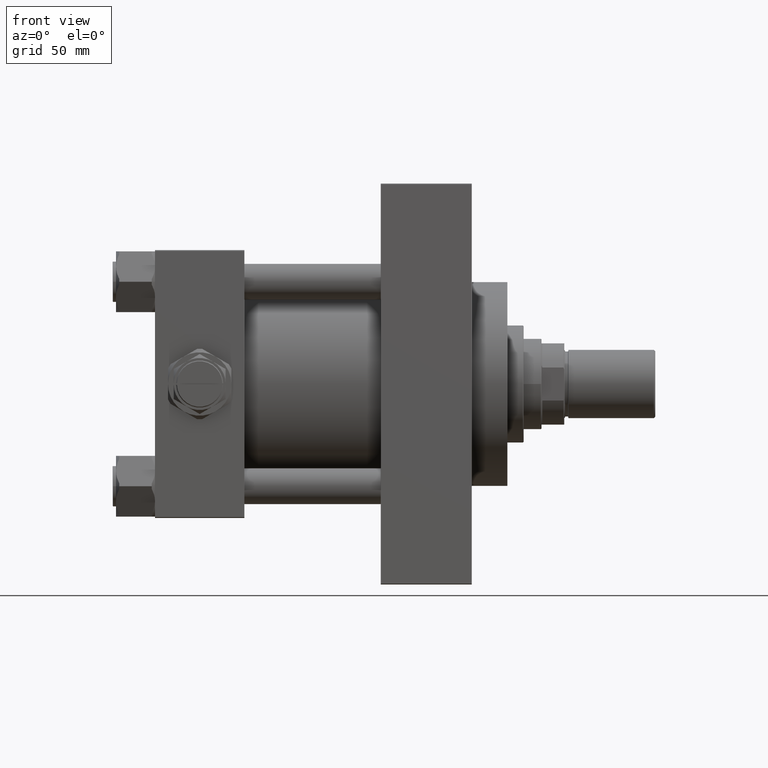
[diagram: clean part render]
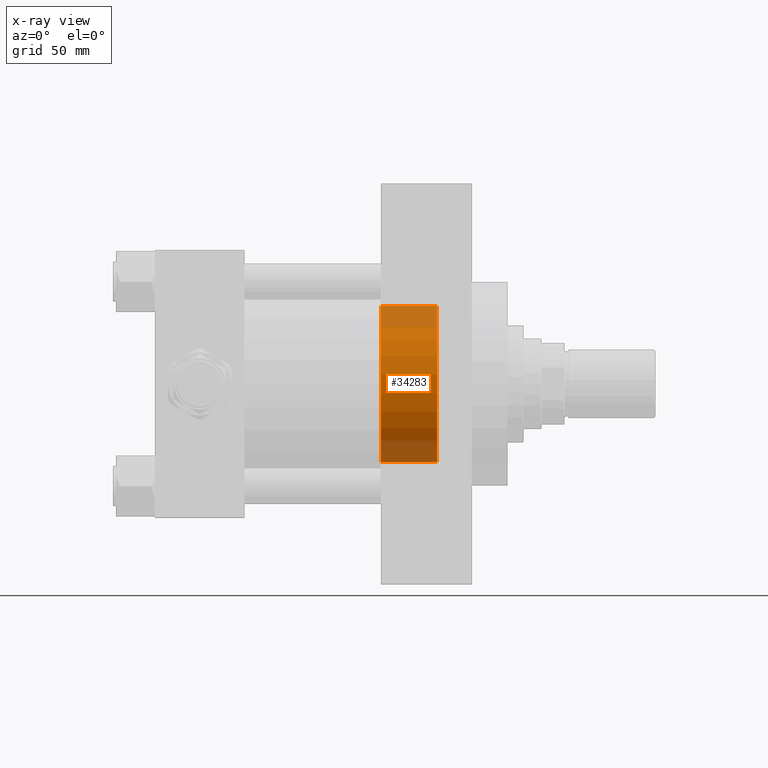
[diagram: x-ray — body ghosted, one internal face saturated and labeled with its STEP entity id]
A machine part, front view, then the same camera in x-ray: the body is ghosted and one INTERNAL B-rep face — a face not visible from any outside direction — is saturated and labeled: STEP entity #34283.
In plain terms, the highlighted cylindrical surface (partial cylindrical patch) has radius 48 mm, axis along (1, 0, 0).
Its self-contained STEP definition (entity closure, byte-faithful):
#1907 = CARTESIAN_POINT ( 'NONE',  ( 173.7400000000000091, 0.000000000000000000, -48.00000000000000711 ) ) ;
#3902 = VERTEX_POINT ( 'NONE', #34654 ) ;
#4047 = CYLINDRICAL_SURFACE ( 'NONE', #9229, 48.00000000000000711 ) ;
#5677 = AXIS2_PLACEMENT_3D ( 'NONE', #14170, #41190, #29826 ) ;
#5986 = LINE ( 'NONE', #36769, #16412 ) ;
#9229 = AXIS2_PLACEMENT_3D ( 'NONE', #19200, #26519, #22990 ) ;
#11109 = FACE_OUTER_BOUND ( 'NONE', #45816, .T. ) ;
#13203 = EDGE_CURVE ( 'NONE', #39400, #25276, #48420, .T. ) ;
#14068 = ORIENTED_EDGE ( 'NONE', *, *, #23487, .F. ) ;
#14170 = CARTESIAN_POINT ( 'NONE',  ( 173.7400000000000091, 0.000000000000000000, 0.000000000000000000 ) ) ;
#15037 = CIRCLE ( 'NONE', #38424, 48.00000000000000711 ) ;
#15856 = ORIENTED_EDGE ( 'NONE', *, *, #13203, .T. ) ;
#16074 = DIRECTION ( 'NONE',  ( -1.000000000000000000, 0.000000000000000000, -0.000000000000000000 ) ) ;
#16412 = VECTOR ( 'NONE', #39826, 1000.000000000000000 ) ;
#17287 = CARTESIAN_POINT ( 'NONE',  ( 173.7400000000000091, 5.878304635907296578E-15, 48.00000000000000711 ) ) ;
#19200 = CARTESIAN_POINT ( 'NONE',  ( -80.76450198781715528, 0.000000000000000000, 0.000000000000000000 ) ) ;
#19621 = CARTESIAN_POINT ( 'NONE',  ( 139.0000000000000000, 0.000000000000000000, 0.000000000000000000 ) ) ;
#22990 = DIRECTION ( 'NONE',  ( 0.000000000000000000, 0.000000000000000000, -1.000000000000000000 ) ) ;
#23142 = ORIENTED_EDGE ( 'NONE', *, *, #42742, .T. ) ;
#23487 = EDGE_CURVE ( 'NONE', #45126, #25276, #5986, .T. ) ;
#25276 = VERTEX_POINT ( 'NONE', #1907 ) ;
#25342 = VECTOR ( 'NONE', #35616, 1000.000000000000000 ) ;
#25620 = EDGE_CURVE ( 'NONE', #3902, #39400, #31359, .T. ) ;
#26519 = DIRECTION ( 'NONE',  ( 1.000000000000000000, -0.000000000000000000, -0.000000000000000000 ) ) ;
#29826 = DIRECTION ( 'NONE',  ( 0.000000000000000000, 0.000000000000000000, -1.000000000000000000 ) ) ;
#31359 = LINE ( 'NONE', #47243, #25342 ) ;
#31477 = DIRECTION ( 'NONE',  ( 0.000000000000000000, 0.000000000000000000, 1.000000000000000000 ) ) ;
#34283 = ADVANCED_FACE ( 'NONE', ( #11109 ), #4047, .F. ) ;
#34654 = CARTESIAN_POINT ( 'NONE',  ( 139.0000000000000000, 5.878304635907296578E-15, 48.00000000000000711 ) ) ;
#35616 = DIRECTION ( 'NONE',  ( 1.000000000000000000, -0.000000000000000000, -0.000000000000000000 ) ) ;
#36769 = CARTESIAN_POINT ( 'NONE',  ( -80.76450198781715528, 0.000000000000000000, -48.00000000000000711 ) ) ;
#38424 = AXIS2_PLACEMENT_3D ( 'NONE', #19621, #16074, #31477 ) ;
#39400 = VERTEX_POINT ( 'NONE', #17287 ) ;
#39826 = DIRECTION ( 'NONE',  ( 1.000000000000000000, -0.000000000000000000, -0.000000000000000000 ) ) ;
#41190 = DIRECTION ( 'NONE',  ( 1.000000000000000000, 0.000000000000000000, 0.000000000000000000 ) ) ;
#42742 = EDGE_CURVE ( 'NONE', #45126, #3902, #15037, .T. ) ;
#45126 = VERTEX_POINT ( 'NONE', #46601 ) ;
#45816 = EDGE_LOOP ( 'NONE', ( #23142, #46680, #15856, #14068 ) ) ;
#46601 = CARTESIAN_POINT ( 'NONE',  ( 139.0000000000000000, 0.000000000000000000, -48.00000000000000711 ) ) ;
#46680 = ORIENTED_EDGE ( 'NONE', *, *, #25620, .T. ) ;
#47243 = CARTESIAN_POINT ( 'NONE',  ( -80.76450198781715528, 5.878304635907296578E-15, 48.00000000000000711 ) ) ;
#48420 = CIRCLE ( 'NONE', #5677, 48.00000000000000711 ) ;